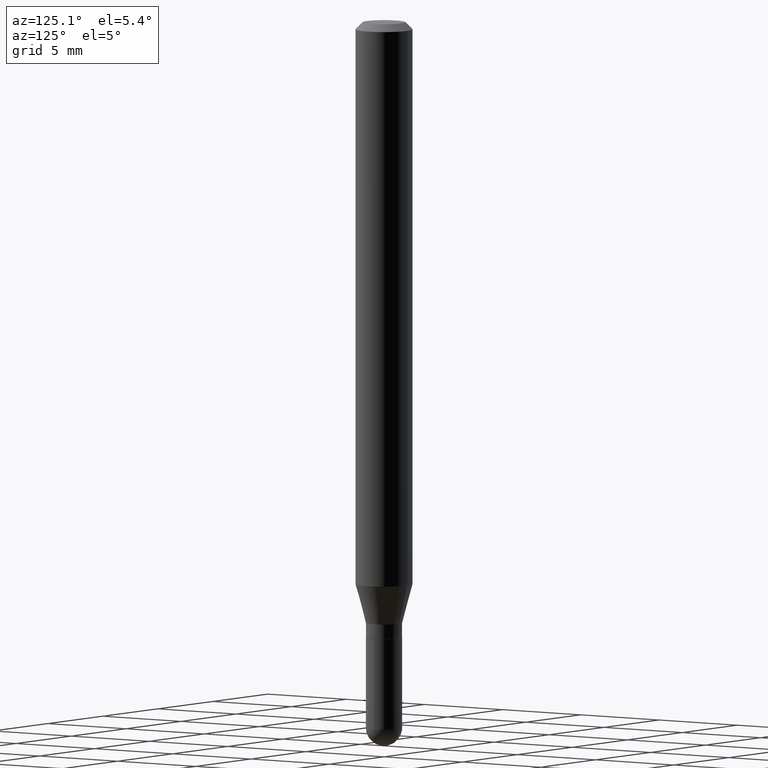
[diagram: clean part render]
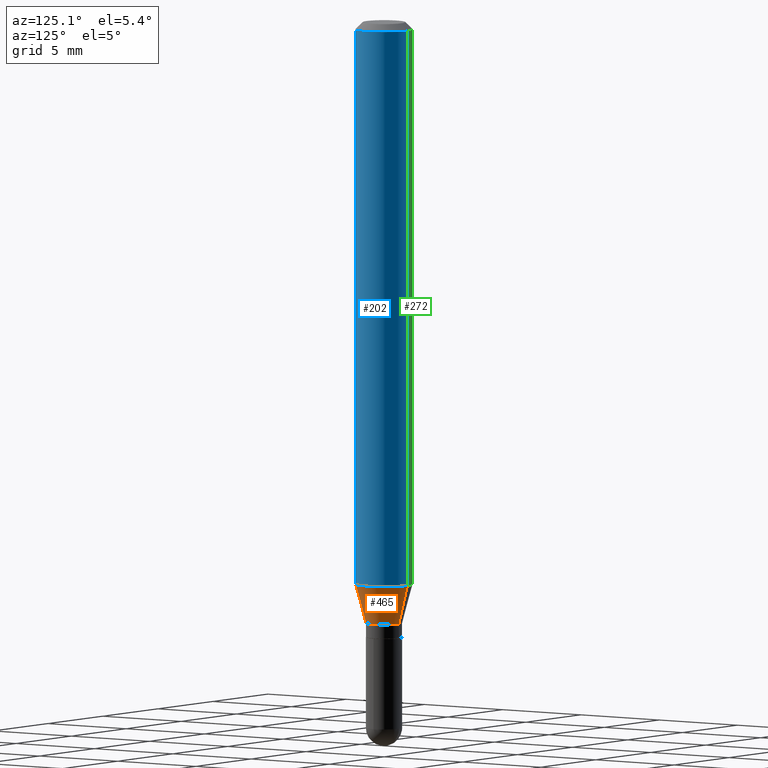
[diagram: same view with three faces highlighted in distinct colors, each labeled with its STEP entity id]
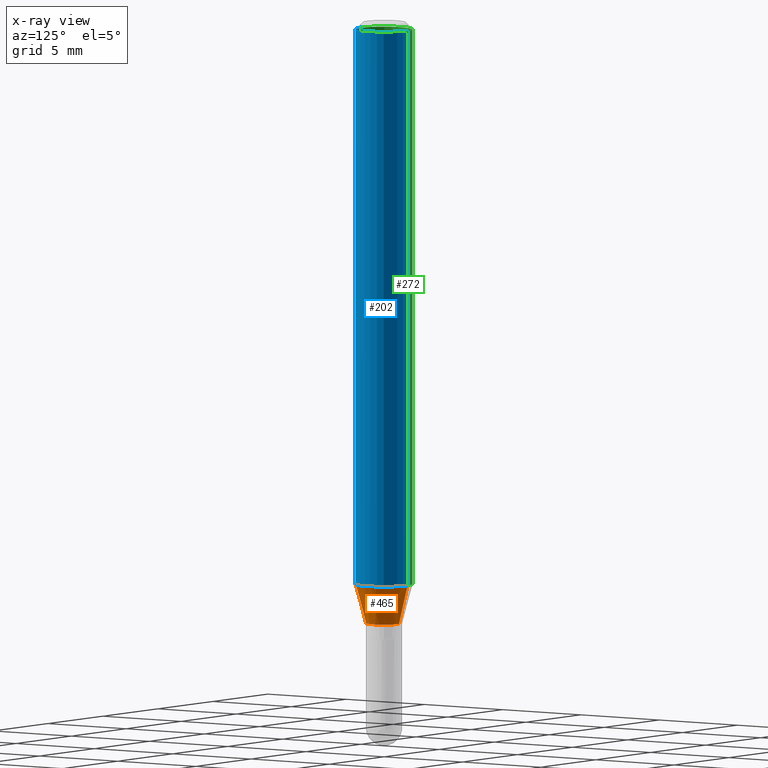
[diagram: x-ray of the same camera — body ghosted, the three highlighted faces saturated]
A machine part, auxiliary view with three faces highlighted in distinct colors.
The next image is the same camera in x-ray (body ghosted, the three faces saturated) — at least one of them is partly hidden behind the body in this view.
Their STEP definitions:

[orange] entity #465 — the highlighted conical surface has half-angle 15 deg.
#5 = LINE ( 'NONE', #363, #28 ) ;
#7 = CIRCLE ( 'NONE', #416, 0.05904999999999999832 ) ;
#8 = DIRECTION ( 'NONE',  ( -2.445466961897875281E-29, 3.491483979967474240E-15, 1.000000000000000000 ) ) ;
#18 = ORIENTED_EDGE ( 'NONE', *, *, #494, .T. ) ;
#20 = DIRECTION ( 'NONE',  ( -6.982962677686265922E-15, -1.000000000000000000, 0.000000000000000000 ) ) ;
#25 = ORIENTED_EDGE ( 'NONE', *, *, #403, .T. ) ;
#28 = VECTOR ( 'NONE', #211, 39.37007874015748854 ) ;
#45 = AXIS2_PLACEMENT_3D ( 'NONE', #374, #449, #20 ) ;
#66 = VERTEX_POINT ( 'NONE', #265 ) ;
#67 = VERTEX_POINT ( 'NONE', #504 ) ;
#84 = DIRECTION ( 'NONE',  ( -2.445466961897875281E-29, 3.491483979967474240E-15, 1.000000000000000000 ) ) ;
#90 = DIRECTION ( 'NONE',  ( -6.982962677686265922E-15, -1.000000000000000000, 4.626330217890369336E-15 ) ) ;
#97 = VECTOR ( 'NONE', #274, 39.37007874015748854 ) ;
#110 = VERTEX_POINT ( 'NONE', #477 ) ;
#141 = CARTESIAN_POINT ( 'NONE',  ( -2.611628041454373603E-16, -0.03740000000000453378, -1.242099999999999760 ) ) ;
#162 = VERTEX_POINT ( 'NONE', #338 ) ;
#172 = FACE_OUTER_BOUND ( 'NONE', #286, .T. ) ;
#179 = LINE ( 'NONE', #141, #97 ) ;
#210 = EDGE_CURVE ( 'NONE', #66, #162, #179, .T. ) ;
#211 = DIRECTION ( 'NONE',  ( 1.839019923739604654E-15, 0.2588190451025255689, 0.9659258262890669799 ) ) ;
#213 = AXIS2_PLACEMENT_3D ( 'NONE', #327, #8, #362 ) ;
#265 = CARTESIAN_POINT ( 'NONE',  ( -2.611628041454373603E-16, -0.03740000000000453378, -1.242099999999999760 ) ) ;
#274 = DIRECTION ( 'NONE',  ( -1.807323732225334478E-15, -0.2588190451025187966, 0.9659258262890687563 ) ) ;
#280 = CIRCLE ( 'NONE', #45, 0.03740000000000019698 ) ;
#286 = EDGE_LOOP ( 'NONE', ( #18, #25, #376, #508 ) ) ;
#289 = CARTESIAN_POINT ( 'NONE',  ( 2.839923472905117553E-29, -4.054664186624940200E-15, -1.161301100016134846 ) ) ;
#327 = CARTESIAN_POINT ( 'NONE',  ( 3.037514513373350346E-29, -4.336772251517599617E-15, -1.242099999999999760 ) ) ;
#338 = CARTESIAN_POINT ( 'NONE',  ( -4.123439461173458802E-16, -0.05905000000000408533, -1.161301100016134624 ) ) ;
#362 = DIRECTION ( 'NONE',  ( -6.982962677686265922E-15, -1.000000000000000000, 0.000000000000000000 ) ) ;
#363 = CARTESIAN_POINT ( 'NONE',  ( 2.657429831743092403E-16, 0.03739999999999586017, -1.242099999999999760 ) ) ;
#374 = CARTESIAN_POINT ( 'NONE',  ( 3.037514513373350346E-29, -4.336772251517599617E-15, -1.242099999999999760 ) ) ;
#376 = ORIENTED_EDGE ( 'NONE', *, *, #456, .F. ) ;
#403 = EDGE_CURVE ( 'NONE', #110, #67, #5, .T. ) ;
#416 = AXIS2_PLACEMENT_3D ( 'NONE', #289, #84, #90 ) ;
#422 = CONICAL_SURFACE ( 'NONE', #213, 0.03740000000000019698, 0.2617993877991509066 ) ;
#449 = DIRECTION ( 'NONE',  ( -2.445466961897875281E-29, 3.491483979967474240E-15, 1.000000000000000000 ) ) ;
#456 = EDGE_CURVE ( 'NONE', #162, #67, #7, .T. ) ;
#465 = ADVANCED_FACE ( 'NONE', ( #172 ), #422, .T. ) ;
#477 = CARTESIAN_POINT ( 'NONE',  ( 3.426592343203384675E-16, 0.03739999999999586017, -1.242099999999999760 ) ) ;
#494 = EDGE_CURVE ( 'NONE', #66, #110, #280, .T. ) ;
#504 = CARTESIAN_POINT ( 'NONE',  ( 4.195754854663672510E-16, 0.05904999999999591132, -1.161301100016135068 ) ) ;
#508 = ORIENTED_EDGE ( 'NONE', *, *, #210, .F. ) ;

[blue] entity #202 — the highlighted cylindrical surface (edge-blend (fillet) strip) has radius 1.4999 mm, axis along (-0, 0, 1).
#7 = CIRCLE ( 'NONE', #416, 0.05904999999999999832 ) ;
#9 = ORIENTED_EDGE ( 'NONE', *, *, #456, .T. ) ;
#27 = VECTOR ( 'NONE', #439, 39.37007874015748143 ) ;
#67 = VERTEX_POINT ( 'NONE', #504 ) ;
#70 = CIRCLE ( 'NONE', #297, 0.05904999999999999832 ) ;
#74 = EDGE_CURVE ( 'NONE', #162, #235, #285, .T. ) ;
#75 = DIRECTION ( 'NONE',  ( -2.445466961897875561E-29, 3.491483979967474635E-15, 1.000000000000000000 ) ) ;
#84 = DIRECTION ( 'NONE',  ( -2.445466961897875281E-29, 3.491483979967474240E-15, 1.000000000000000000 ) ) ;
#90 = DIRECTION ( 'NONE',  ( -6.982962677686265922E-15, -1.000000000000000000, 4.626330217890369336E-15 ) ) ;
#91 = AXIS2_PLACEMENT_3D ( 'NONE', #149, #505, #264 ) ;
#109 = CARTESIAN_POINT ( 'NONE',  ( 4.195754854663675961E-16, 0.05904999999999994281, -0.01500000000000023016 ) ) ;
#114 = CARTESIAN_POINT ( 'NONE',  ( -4.123439461173736383E-16, -0.05905000000000005383, -0.01499999999999981730 ) ) ;
#116 = CARTESIAN_POINT ( 'NONE',  ( -4.123439461173739834E-16, -0.05904999999999999832, 2.061721290170793530E-16 ) ) ;
#123 = DIRECTION ( 'NONE',  ( -6.982962677686265922E-15, -1.000000000000000000, 3.505890868245046092E-15 ) ) ;
#127 = EDGE_CURVE ( 'NONE', #67, #204, #506, .T. ) ;
#149 = CARTESIAN_POINT ( 'NONE',  ( 0.000000000000000000, 0.000000000000000000, 0.000000000000000000 ) ) ;
#150 = CYLINDRICAL_SURFACE ( 'NONE', #91, 0.05904999999999999832 ) ;
#162 = VERTEX_POINT ( 'NONE', #338 ) ;
#202 = ADVANCED_FACE ( 'NONE', ( #381 ), #150, .T. ) ;
#204 = VERTEX_POINT ( 'NONE', #109 ) ;
#209 = DIRECTION ( 'NONE',  ( -2.445466961897875281E-29, 3.491483979967474240E-15, 1.000000000000000000 ) ) ;
#235 = VERTEX_POINT ( 'NONE', #114 ) ;
#264 = DIRECTION ( 'NONE',  ( -6.982962677686265922E-15, -1.000000000000000000, 3.491483979967474240E-15 ) ) ;
#285 = LINE ( 'NONE', #116, #27 ) ;
#289 = CARTESIAN_POINT ( 'NONE',  ( 2.839923472905117553E-29, -4.054664186624940200E-15, -1.161301100016134846 ) ) ;
#295 = EDGE_LOOP ( 'NONE', ( #9, #402, #306, #355 ) ) ;
#297 = AXIS2_PLACEMENT_3D ( 'NONE', #324, #209, #123 ) ;
#306 = ORIENTED_EDGE ( 'NONE', *, *, #471, .F. ) ;
#324 = CARTESIAN_POINT ( 'NONE',  ( 3.668200442846818877E-31, -5.237225969951219545E-17, -0.01500000000000002373 ) ) ;
#338 = CARTESIAN_POINT ( 'NONE',  ( -4.123439461173458802E-16, -0.05905000000000408533, -1.161301100016134624 ) ) ;
#355 = ORIENTED_EDGE ( 'NONE', *, *, #74, .F. ) ;
#381 = FACE_OUTER_BOUND ( 'NONE', #295, .T. ) ;
#402 = ORIENTED_EDGE ( 'NONE', *, *, #127, .T. ) ;
#415 = VECTOR ( 'NONE', #75, 39.37007874015748143 ) ;
#416 = AXIS2_PLACEMENT_3D ( 'NONE', #289, #84, #90 ) ;
#427 = CARTESIAN_POINT ( 'NONE',  ( 4.195754854663390985E-16, 0.05904999999999999832, -2.061721290170793530E-16 ) ) ;
#439 = DIRECTION ( 'NONE',  ( -2.445466961897875561E-29, 3.491483979967474635E-15, 1.000000000000000000 ) ) ;
#456 = EDGE_CURVE ( 'NONE', #162, #67, #7, .T. ) ;
#471 = EDGE_CURVE ( 'NONE', #235, #204, #70, .T. ) ;
#504 = CARTESIAN_POINT ( 'NONE',  ( 4.195754854663672510E-16, 0.05904999999999591132, -1.161301100016135068 ) ) ;
#505 = DIRECTION ( 'NONE',  ( -2.445466961897875281E-29, 3.491483979967474240E-15, 1.000000000000000000 ) ) ;
#506 = LINE ( 'NONE', #427, #415 ) ;

[green] entity #272 — the highlighted cylindrical surface (edge-blend (fillet) strip) has radius 1.4999 mm, axis along (-0, 0, 1).
#27 = VECTOR ( 'NONE', #439, 39.37007874015748143 ) ;
#36 = ORIENTED_EDGE ( 'NONE', *, *, #346, .T. ) ;
#47 = CARTESIAN_POINT ( 'NONE',  ( 2.839923472905117553E-29, -4.054664186624940200E-15, -1.161301100016134846 ) ) ;
#67 = VERTEX_POINT ( 'NONE', #504 ) ;
#74 = EDGE_CURVE ( 'NONE', #162, #235, #285, .T. ) ;
#75 = DIRECTION ( 'NONE',  ( -2.445466961897875561E-29, 3.491483979967474635E-15, 1.000000000000000000 ) ) ;
#76 = CYLINDRICAL_SURFACE ( 'NONE', #382, 0.05904999999999999832 ) ;
#109 = CARTESIAN_POINT ( 'NONE',  ( 4.195754854663675961E-16, 0.05904999999999994281, -0.01500000000000023016 ) ) ;
#114 = CARTESIAN_POINT ( 'NONE',  ( -4.123439461173736383E-16, -0.05905000000000005383, -0.01499999999999981730 ) ) ;
#116 = CARTESIAN_POINT ( 'NONE',  ( -4.123439461173739834E-16, -0.05904999999999999832, 2.061721290170793530E-16 ) ) ;
#119 = CARTESIAN_POINT ( 'NONE',  ( 0.000000000000000000, 0.000000000000000000, 0.000000000000000000 ) ) ;
#127 = EDGE_CURVE ( 'NONE', #67, #204, #506, .T. ) ;
#162 = VERTEX_POINT ( 'NONE', #338 ) ;
#176 = CIRCLE ( 'NONE', #365, 0.05904999999999999832 ) ;
#204 = VERTEX_POINT ( 'NONE', #109 ) ;
#225 = DIRECTION ( 'NONE',  ( -6.982962677686265922E-15, -1.000000000000000000, 3.491483979967474240E-15 ) ) ;
#235 = VERTEX_POINT ( 'NONE', #114 ) ;
#248 = DIRECTION ( 'NONE',  ( -2.445466961897875281E-29, 3.491483979967474240E-15, 1.000000000000000000 ) ) ;
#249 = EDGE_CURVE ( 'NONE', #204, #235, #176, .T. ) ;
#272 = ADVANCED_FACE ( 'NONE', ( #420 ), #76, .T. ) ;
#275 = EDGE_LOOP ( 'NONE', ( #413, #36, #418, #497 ) ) ;
#285 = LINE ( 'NONE', #116, #27 ) ;
#308 = CIRCLE ( 'NONE', #400, 0.05904999999999999832 ) ;
#338 = CARTESIAN_POINT ( 'NONE',  ( -4.123439461173458802E-16, -0.05905000000000408533, -1.161301100016134624 ) ) ;
#346 = EDGE_CURVE ( 'NONE', #67, #162, #308, .T. ) ;
#354 = DIRECTION ( 'NONE',  ( -2.445466961897875281E-29, 3.491483979967474240E-15, 1.000000000000000000 ) ) ;
#365 = AXIS2_PLACEMENT_3D ( 'NONE', #487, #452, #390 ) ;
#382 = AXIS2_PLACEMENT_3D ( 'NONE', #119, #354, #225 ) ;
#390 = DIRECTION ( 'NONE',  ( -6.982962677686265922E-15, -1.000000000000000000, 3.505890868245046092E-15 ) ) ;
#397 = DIRECTION ( 'NONE',  ( -6.982962677686265922E-15, -1.000000000000000000, 4.626330217890369336E-15 ) ) ;
#400 = AXIS2_PLACEMENT_3D ( 'NONE', #47, #248, #397 ) ;
#413 = ORIENTED_EDGE ( 'NONE', *, *, #127, .F. ) ;
#415 = VECTOR ( 'NONE', #75, 39.37007874015748143 ) ;
#418 = ORIENTED_EDGE ( 'NONE', *, *, #74, .T. ) ;
#420 = FACE_OUTER_BOUND ( 'NONE', #275, .T. ) ;
#427 = CARTESIAN_POINT ( 'NONE',  ( 4.195754854663390985E-16, 0.05904999999999999832, -2.061721290170793530E-16 ) ) ;
#439 = DIRECTION ( 'NONE',  ( -2.445466961897875561E-29, 3.491483979967474635E-15, 1.000000000000000000 ) ) ;
#452 = DIRECTION ( 'NONE',  ( -2.445466961897875281E-29, 3.491483979967474240E-15, 1.000000000000000000 ) ) ;
#487 = CARTESIAN_POINT ( 'NONE',  ( 3.668200442846818877E-31, -5.237225969951219545E-17, -0.01500000000000002373 ) ) ;
#497 = ORIENTED_EDGE ( 'NONE', *, *, #249, .F. ) ;
#504 = CARTESIAN_POINT ( 'NONE',  ( 4.195754854663672510E-16, 0.05904999999999591132, -1.161301100016135068 ) ) ;
#506 = LINE ( 'NONE', #427, #415 ) ;